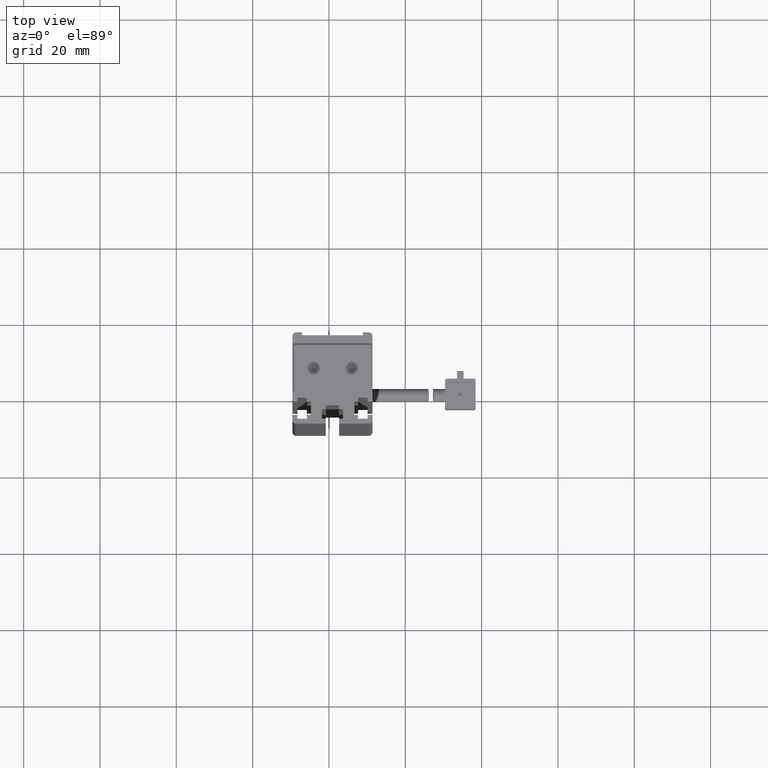
[diagram: clean part render]
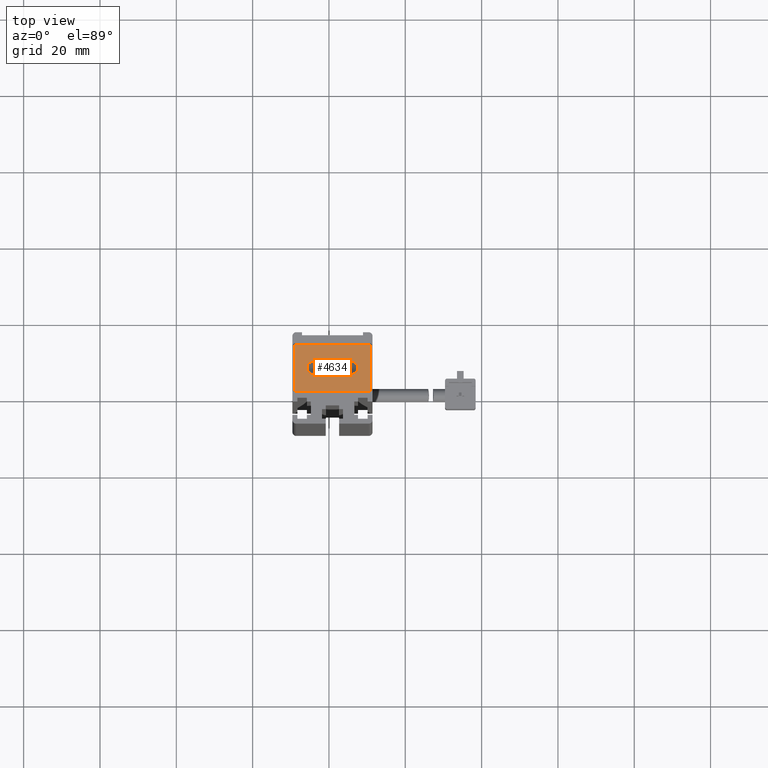
[diagram: same view with one face highlighted and labeled with its STEP entity id]
A machine part, top view. The second image highlights one B-rep face of the part: STEP entity #4634.
In plain terms, the highlighted planar face has unit normal (0, 0, 1).
Its self-contained STEP definition (entity closure, byte-faithful):
#470 = EDGE_CURVE ( 'NONE', #38213, #27506, #15524, .T. ) ;
#2541 = ORIENTED_EDGE ( 'NONE', *, *, #31375, .T. ) ;
#2573 = CARTESIAN_POINT ( 'NONE',  ( 47.62537974680203900, 25.59073232304837100, -23.00000000005686500 ) ) ;
#3260 = EDGE_CURVE ( 'NONE', #18639, #12739, #41472, .T. ) ;
#3442 = CARTESIAN_POINT ( 'NONE',  ( 45.92537974683541800, 25.59073232304837100, -23.00000000005686500 ) ) ;
#3602 = DIRECTION ( 'NONE',  ( 1.000000000000000000, 0.0000000000000000000, 0.0000000000000000000 ) ) ;
#4142 = EDGE_LOOP ( 'NONE', ( #11734, #32720 ) ) ;
#4634 = ADVANCED_FACE ( 'NONE', ( #13683, #5458, #33597 ), #41792, .T. ) ;
#4743 = CARTESIAN_POINT ( 'NONE',  ( 40.92537974683541800, 19.49073232304837000, -23.00000000000002100 ) ) ;
#5458 = FACE_BOUND ( 'NONE', #4142, .T. ) ;
#6812 = CARTESIAN_POINT ( 'NONE',  ( 45.92537974683541800, 25.59073232304837100, -23.00000000005686500 ) ) ;
#6932 = AXIS2_PLACEMENT_3D ( 'NONE', #3442, #7195, #3602 ) ;
#7195 = DIRECTION ( 'NONE',  ( -0.0000000000000000000, -0.0000000000000000000, -1.000000000000000000 ) ) ;
#7651 = DIRECTION ( 'NONE',  ( -0.0000000000000000000, -0.0000000000000000000, -1.000000000000000000 ) ) ;
#8676 = VERTEX_POINT ( 'NONE', #44076 ) ;
#8975 = DIRECTION ( 'NONE',  ( 1.000000000000000000, 0.0000000000000000000, 0.0000000000000000000 ) ) ;
#9491 = CARTESIAN_POINT ( 'NONE',  ( 35.92537974683541800, 25.59073232304836800, -23.00000000000002100 ) ) ;
#9773 = CARTESIAN_POINT ( 'NONE',  ( 50.92537974683541800, 25.79073232304837000, -23.00000000000002100 ) ) ;
#11734 = ORIENTED_EDGE ( 'NONE', *, *, #25313, .T. ) ;
#11924 = DIRECTION ( 'NONE',  ( 1.000000000000000000, 0.0000000000000000000, 0.0000000000000000000 ) ) ;
#12065 = VECTOR ( 'NONE', #15179, 1000.000000000000000 ) ;
#12739 = VERTEX_POINT ( 'NONE', #45556 ) ;
#13683 = FACE_OUTER_BOUND ( 'NONE', #19276, .T. ) ;
#13931 = CARTESIAN_POINT ( 'NONE',  ( 44.22537974686878900, 25.59073232304837100, -23.00000000005686500 ) ) ;
#15179 = DIRECTION ( 'NONE',  ( -0.0000000000000000000, -1.000000000000000000, -0.0000000000000000000 ) ) ;
#15524 = LINE ( 'NONE', #24350, #37156 ) ;
#15606 = CARTESIAN_POINT ( 'NONE',  ( 40.92537974683541800, 25.79073232304837000, -23.00000000000002100 ) ) ;
#17358 = AXIS2_PLACEMENT_3D ( 'NONE', #6812, #44630, #40850 ) ;
#17561 = AXIS2_PLACEMENT_3D ( 'NONE', #15606, #19359, #45539 ) ;
#18639 = VERTEX_POINT ( 'NONE', #24920 ) ;
#18989 = CARTESIAN_POINT ( 'NONE',  ( 35.92537974683541800, 25.59073232304836800, -23.00000000000002100 ) ) ;
#19256 = CARTESIAN_POINT ( 'NONE',  ( 30.92537974683542100, 25.79073232304837000, -23.00000000000002100 ) ) ;
#19276 = EDGE_LOOP ( 'NONE', ( #34116, #29319, #19750, #2541 ) ) ;
#19359 = DIRECTION ( 'NONE',  ( 0.0000000000000000000, 0.0000000000000000000, 1.000000000000000000 ) ) ;
#19750 = ORIENTED_EDGE ( 'NONE', *, *, #3260, .T. ) ;
#20897 = CIRCLE ( 'NONE', #17358, 1.699999999966624000 ) ;
#21207 = LINE ( 'NONE', #9773, #30571 ) ;
#21268 = DIRECTION ( 'NONE',  ( 0.0000000000000000000, 1.000000000000000000, 0.0000000000000000000 ) ) ;
#22371 = EDGE_CURVE ( 'NONE', #22770, #8676, #37095, .T. ) ;
#22671 = EDGE_CURVE ( 'NONE', #8676, #22770, #47032, .T. ) ;
#22770 = VERTEX_POINT ( 'NONE', #31056 ) ;
#22976 = CARTESIAN_POINT ( 'NONE',  ( 50.92537974683541800, 31.59073232304836800, -23.00000000000002100 ) ) ;
#24350 = CARTESIAN_POINT ( 'NONE',  ( 40.92537974683541800, 31.59073232304836100, -23.00000000000002100 ) ) ;
#24863 = DIRECTION ( 'NONE',  ( -1.000000000000000000, -0.0000000000000000000, -0.0000000000000000000 ) ) ;
#24920 = CARTESIAN_POINT ( 'NONE',  ( 30.92537974683541800, 19.49073232304837000, -23.00000000000002100 ) ) ;
#25313 = EDGE_CURVE ( 'NONE', #35777, #35212, #20897, .T. ) ;
#25383 = ORIENTED_EDGE ( 'NONE', *, *, #22671, .T. ) ;
#25505 = EDGE_CURVE ( 'NONE', #27506, #18639, #43112, .T. ) ;
#25522 = CARTESIAN_POINT ( 'NONE',  ( 30.92537974683542100, 31.59073232304836100, -23.00000000000002100 ) ) ;
#27506 = VERTEX_POINT ( 'NONE', #25522 ) ;
#27821 = AXIS2_PLACEMENT_3D ( 'NONE', #18989, #7651, #11924 ) ;
#28005 = DIRECTION ( 'NONE',  ( -0.0000000000000000000, -0.0000000000000000000, -1.000000000000000000 ) ) ;
#29010 = ORIENTED_EDGE ( 'NONE', *, *, #22371, .T. ) ;
#29319 = ORIENTED_EDGE ( 'NONE', *, *, #25505, .T. ) ;
#29488 = EDGE_CURVE ( 'NONE', #35212, #35777, #48466, .T. ) ;
#30571 = VECTOR ( 'NONE', #21268, 1000.000000000000000 ) ;
#31056 = CARTESIAN_POINT ( 'NONE',  ( 37.62537974681113400, 25.59073232304836800, -23.00000000000002100 ) ) ;
#31375 = EDGE_CURVE ( 'NONE', #12739, #38213, #21207, .T. ) ;
#32184 = AXIS2_PLACEMENT_3D ( 'NONE', #9491, #28005, #8975 ) ;
#32720 = ORIENTED_EDGE ( 'NONE', *, *, #29488, .T. ) ;
#33597 = FACE_BOUND ( 'NONE', #38698, .T. ) ;
#34116 = ORIENTED_EDGE ( 'NONE', *, *, #470, .T. ) ;
#34842 = DIRECTION ( 'NONE',  ( 1.000000000000000000, 0.0000000000000000000, 0.0000000000000000000 ) ) ;
#35212 = VERTEX_POINT ( 'NONE', #13931 ) ;
#35777 = VERTEX_POINT ( 'NONE', #2573 ) ;
#37095 = CIRCLE ( 'NONE', #32184, 1.699999999975714000 ) ;
#37156 = VECTOR ( 'NONE', #24863, 1000.000000000000000 ) ;
#38213 = VERTEX_POINT ( 'NONE', #22976 ) ;
#38698 = EDGE_LOOP ( 'NONE', ( #29010, #25383 ) ) ;
#40280 = VECTOR ( 'NONE', #34842, 1000.000000000000000 ) ;
#40850 = DIRECTION ( 'NONE',  ( 1.000000000000000000, 0.0000000000000000000, 0.0000000000000000000 ) ) ;
#41472 = LINE ( 'NONE', #4743, #40280 ) ;
#41792 = PLANE ( 'NONE',  #17561 ) ;
#43112 = LINE ( 'NONE', #19256, #12065 ) ;
#44076 = CARTESIAN_POINT ( 'NONE',  ( 34.22537974685970900, 25.59073232304836800, -23.00000000000002100 ) ) ;
#44630 = DIRECTION ( 'NONE',  ( -0.0000000000000000000, -0.0000000000000000000, -1.000000000000000000 ) ) ;
#45539 = DIRECTION ( 'NONE',  ( 1.000000000000000000, 0.0000000000000000000, 0.0000000000000000000 ) ) ;
#45556 = CARTESIAN_POINT ( 'NONE',  ( 50.92537974683541800, 19.49073232304837000, -23.00000000000002100 ) ) ;
#47032 = CIRCLE ( 'NONE', #27821, 1.699999999975714000 ) ;
#48466 = CIRCLE ( 'NONE', #6932, 1.699999999966624000 ) ;